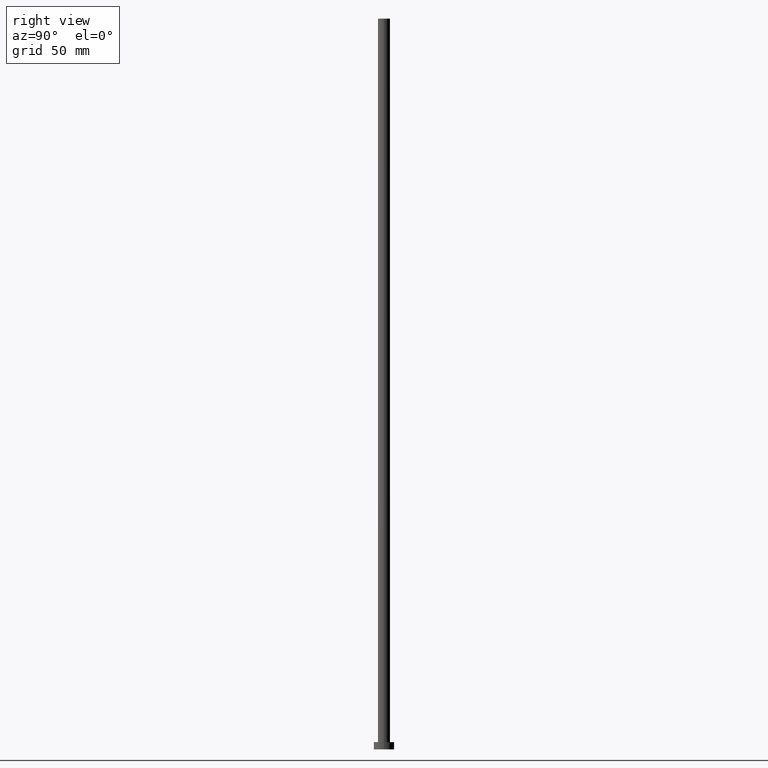
[diagram: clean part render]
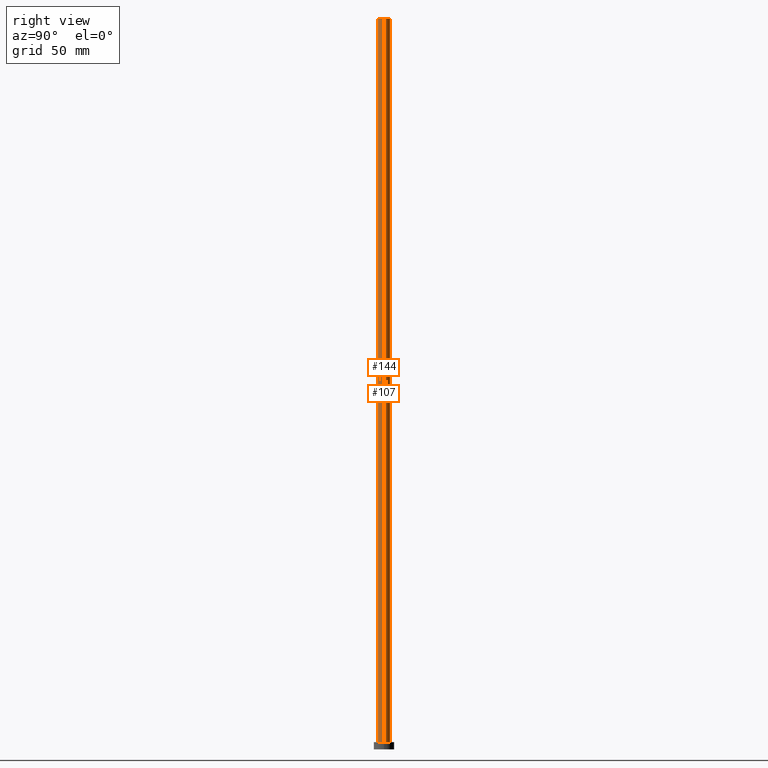
[diagram: same view with one multi-face feature highlighted, each face labeled with its STEP entity id]
A machine part, right view. The highlighted faces form ONE feature: a constant-radius fillet chain: 2 tangent blend faces with common blend radius 4.1 mm. The faces share edges in the B-rep.
Their STEP definitions:
[1] entity #144 (Cylinder):
#6 = DIRECTION ( 'NONE',  ( 1.000000000000000000, 0.000000000000000000, 0.000000000000000000 ) ) ;
#8 = CARTESIAN_POINT ( 'NONE',  ( 0.000000000000000000, 0.000000000000000000, 500.0000000000000000 ) ) ;
#9 = CYLINDRICAL_SURFACE ( 'NONE', #200, 4.099999999999999645 ) ;
#17 = VERTEX_POINT ( 'NONE', #193 ) ;
#18 = EDGE_LOOP ( 'NONE', ( #20, #98, #63, #148 ) ) ;
#20 = ORIENTED_EDGE ( 'NONE', *, *, #82, .F. ) ;
#22 = LINE ( 'NONE', #151, #88 ) ;
#28 = DIRECTION ( 'NONE',  ( 0.000000000000000000, 0.000000000000000000, 1.000000000000000000 ) ) ;
#29 = DIRECTION ( 'NONE',  ( -0.000000000000000000, -0.000000000000000000, -1.000000000000000000 ) ) ;
#47 = CARTESIAN_POINT ( 'NONE',  ( -4.099999999999999645, 0.000000000000000000, 500.0000000000000000 ) ) ;
#48 = CARTESIAN_POINT ( 'NONE',  ( -4.099999999999999645, 0.000000000000000000, 500.0000000000000000 ) ) ;
#51 = CARTESIAN_POINT ( 'NONE',  ( -4.099999999999999645, 0.000000000000000000, 5.000000000000000000 ) ) ;
#57 = VECTOR ( 'NONE', #182, 1000.000000000000000 ) ;
#63 = ORIENTED_EDGE ( 'NONE', *, *, #206, .T. ) ;
#65 = CARTESIAN_POINT ( 'NONE',  ( 0.000000000000000000, 0.000000000000000000, 500.0000000000000000 ) ) ;
#67 = AXIS2_PLACEMENT_3D ( 'NONE', #222, #244, #6 ) ;
#82 = EDGE_CURVE ( 'NONE', #17, #97, #22, .T. ) ;
#84 = LINE ( 'NONE', #47, #57 ) ;
#88 = VECTOR ( 'NONE', #214, 1000.000000000000000 ) ;
#97 = VERTEX_POINT ( 'NONE', #137 ) ;
#98 = ORIENTED_EDGE ( 'NONE', *, *, #213, .F. ) ;
#106 = DIRECTION ( 'NONE',  ( 1.000000000000000000, 0.000000000000000000, 0.000000000000000000 ) ) ;
#111 = VERTEX_POINT ( 'NONE', #48 ) ;
#123 = FACE_OUTER_BOUND ( 'NONE', #18, .T. ) ;
#137 = CARTESIAN_POINT ( 'NONE',  ( 4.099999999999999645, 5.021051876504147385E-16, 5.000000000000000000 ) ) ;
#140 = CIRCLE ( 'NONE', #235, 4.099999999999999645 ) ;
#144 = ADVANCED_FACE ( 'NONE', ( #123 ), #9, .T. ) ;
#148 = ORIENTED_EDGE ( 'NONE', *, *, #168, .T. ) ;
#151 = CARTESIAN_POINT ( 'NONE',  ( 4.099999999999999645, 5.021051876504147385E-16, 500.0000000000000000 ) ) ;
#162 = CIRCLE ( 'NONE', #67, 4.099999999999999645 ) ;
#168 = EDGE_CURVE ( 'NONE', #175, #97, #162, .T. ) ;
#175 = VERTEX_POINT ( 'NONE', #51 ) ;
#182 = DIRECTION ( 'NONE',  ( -0.000000000000000000, -0.000000000000000000, -1.000000000000000000 ) ) ;
#193 = CARTESIAN_POINT ( 'NONE',  ( 4.099999999999999645, 5.021051876504147385E-16, 500.0000000000000000 ) ) ;
#200 = AXIS2_PLACEMENT_3D ( 'NONE', #65, #29, #221 ) ;
#206 = EDGE_CURVE ( 'NONE', #111, #175, #84, .T. ) ;
#213 = EDGE_CURVE ( 'NONE', #111, #17, #140, .T. ) ;
#214 = DIRECTION ( 'NONE',  ( -0.000000000000000000, -0.000000000000000000, -1.000000000000000000 ) ) ;
#221 = DIRECTION ( 'NONE',  ( -1.000000000000000000, 0.000000000000000000, 0.000000000000000000 ) ) ;
#222 = CARTESIAN_POINT ( 'NONE',  ( 0.000000000000000000, 0.000000000000000000, 5.000000000000000000 ) ) ;
#235 = AXIS2_PLACEMENT_3D ( 'NONE', #8, #28, #106 ) ;
#244 = DIRECTION ( 'NONE',  ( 0.000000000000000000, 0.000000000000000000, 1.000000000000000000 ) ) ;
[2] entity #107 (Cylinder):
#12 = DIRECTION ( 'NONE',  ( 0.000000000000000000, 0.000000000000000000, 1.000000000000000000 ) ) ;
#17 = VERTEX_POINT ( 'NONE', #193 ) ;
#22 = LINE ( 'NONE', #151, #88 ) ;
#25 = DIRECTION ( 'NONE',  ( 1.000000000000000000, 0.000000000000000000, 0.000000000000000000 ) ) ;
#26 = FACE_OUTER_BOUND ( 'NONE', #253, .T. ) ;
#31 = CYLINDRICAL_SURFACE ( 'NONE', #254, 4.099999999999999645 ) ;
#47 = CARTESIAN_POINT ( 'NONE',  ( -4.099999999999999645, 0.000000000000000000, 500.0000000000000000 ) ) ;
#48 = CARTESIAN_POINT ( 'NONE',  ( -4.099999999999999645, 0.000000000000000000, 500.0000000000000000 ) ) ;
#51 = CARTESIAN_POINT ( 'NONE',  ( -4.099999999999999645, 0.000000000000000000, 5.000000000000000000 ) ) ;
#57 = VECTOR ( 'NONE', #182, 1000.000000000000000 ) ;
#64 = CARTESIAN_POINT ( 'NONE',  ( 0.000000000000000000, 0.000000000000000000, 500.0000000000000000 ) ) ;
#82 = EDGE_CURVE ( 'NONE', #17, #97, #22, .T. ) ;
#84 = LINE ( 'NONE', #47, #57 ) ;
#86 = DIRECTION ( 'NONE',  ( 0.000000000000000000, 0.000000000000000000, 1.000000000000000000 ) ) ;
#88 = VECTOR ( 'NONE', #214, 1000.000000000000000 ) ;
#91 = EDGE_CURVE ( 'NONE', #17, #111, #230, .T. ) ;
#94 = ORIENTED_EDGE ( 'NONE', *, *, #82, .T. ) ;
#97 = VERTEX_POINT ( 'NONE', #137 ) ;
#104 = DIRECTION ( 'NONE',  ( 1.000000000000000000, 0.000000000000000000, 0.000000000000000000 ) ) ;
#107 = ADVANCED_FACE ( 'NONE', ( #26 ), #31, .T. ) ;
#111 = VERTEX_POINT ( 'NONE', #48 ) ;
#115 = ORIENTED_EDGE ( 'NONE', *, *, #247, .T. ) ;
#137 = CARTESIAN_POINT ( 'NONE',  ( 4.099999999999999645, 5.021051876504147385E-16, 5.000000000000000000 ) ) ;
#139 = CARTESIAN_POINT ( 'NONE',  ( 0.000000000000000000, 0.000000000000000000, 5.000000000000000000 ) ) ;
#146 = AXIS2_PLACEMENT_3D ( 'NONE', #64, #12, #25 ) ;
#151 = CARTESIAN_POINT ( 'NONE',  ( 4.099999999999999645, 5.021051876504147385E-16, 500.0000000000000000 ) ) ;
#154 = ORIENTED_EDGE ( 'NONE', *, *, #91, .F. ) ;
#159 = DIRECTION ( 'NONE',  ( -0.000000000000000000, -0.000000000000000000, -1.000000000000000000 ) ) ;
#175 = VERTEX_POINT ( 'NONE', #51 ) ;
#177 = CIRCLE ( 'NONE', #204, 4.099999999999999645 ) ;
#182 = DIRECTION ( 'NONE',  ( -0.000000000000000000, -0.000000000000000000, -1.000000000000000000 ) ) ;
#183 = CARTESIAN_POINT ( 'NONE',  ( 0.000000000000000000, 0.000000000000000000, 500.0000000000000000 ) ) ;
#193 = CARTESIAN_POINT ( 'NONE',  ( 4.099999999999999645, 5.021051876504147385E-16, 500.0000000000000000 ) ) ;
#204 = AXIS2_PLACEMENT_3D ( 'NONE', #139, #86, #104 ) ;
#206 = EDGE_CURVE ( 'NONE', #111, #175, #84, .T. ) ;
#212 = ORIENTED_EDGE ( 'NONE', *, *, #206, .F. ) ;
#214 = DIRECTION ( 'NONE',  ( -0.000000000000000000, -0.000000000000000000, -1.000000000000000000 ) ) ;
#230 = CIRCLE ( 'NONE', #146, 4.099999999999999645 ) ;
#242 = DIRECTION ( 'NONE',  ( -1.000000000000000000, 0.000000000000000000, 0.000000000000000000 ) ) ;
#247 = EDGE_CURVE ( 'NONE', #97, #175, #177, .T. ) ;
#253 = EDGE_LOOP ( 'NONE', ( #154, #94, #115, #212 ) ) ;
#254 = AXIS2_PLACEMENT_3D ( 'NONE', #183, #159, #242 ) ;